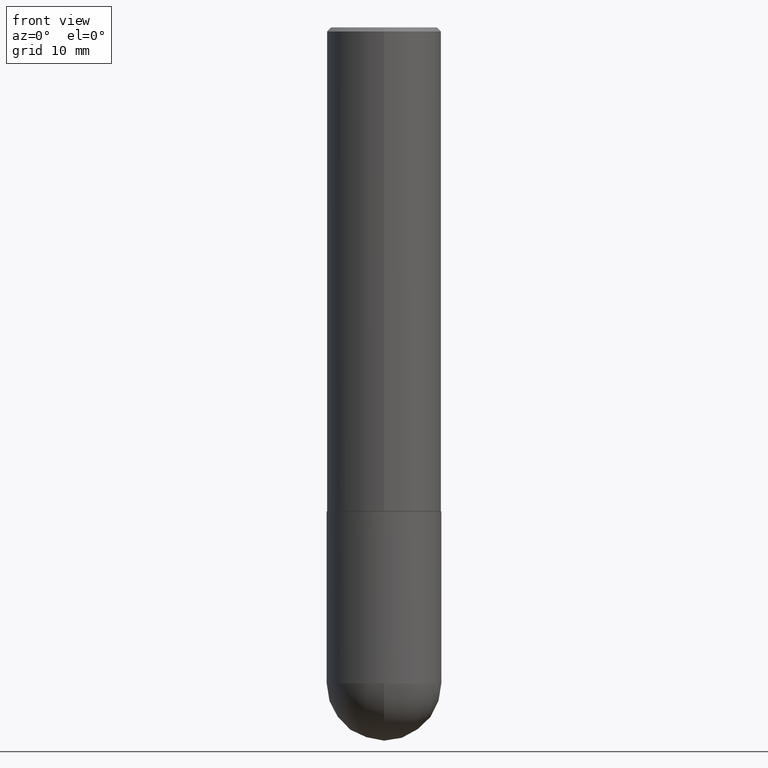
[diagram: clean part render]
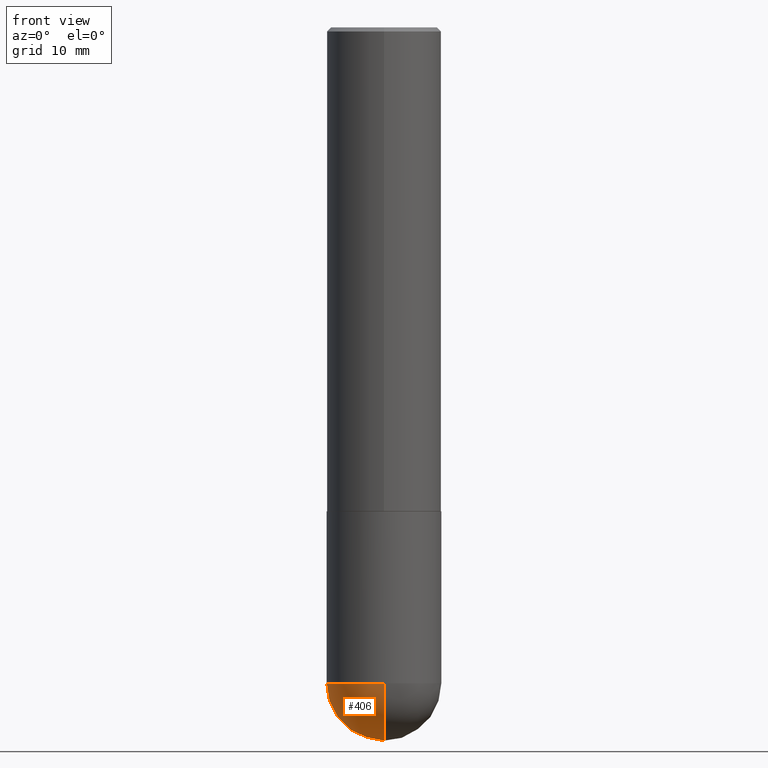
[diagram: same view with one face highlighted and labeled with its STEP entity id]
A machine part, front view. The second image highlights one B-rep face of the part: STEP entity #406.
In plain terms, the highlighted spherical surface has radius 7.1438 mm.
Its self-contained STEP definition (entity closure, byte-faithful):
#26 = CIRCLE ( 'NONE', #281, 0.2812500000000003331 ) ;
#45 = ORIENTED_EDGE ( 'NONE', *, *, #260, .T. ) ;
#53 = DIRECTION ( 'NONE',  ( 6.982962677686265133E-15, 1.000000000000000000, 0.000000000000000000 ) ) ;
#75 = ORIENTED_EDGE ( 'NONE', *, *, #159, .F. ) ;
#85 = CIRCLE ( 'NONE', #150, 0.2812500000000003331 ) ;
#89 = CARTESIAN_POINT ( 'NONE',  ( 7.540232941994521053E-29, -1.171238792754142562E-14, -3.218749999999999556 ) ) ;
#98 = CARTESIAN_POINT ( 'NONE',  ( 7.871352719908407300E-29, -1.123820555940137375E-14, -3.218749999999999556 ) ) ;
#101 = EDGE_CURVE ( 'NONE', #291, #226, #185, .T. ) ;
#118 = DIRECTION ( 'NONE',  ( 1.000000000000000000, -6.982962677686268288E-15, 0.000000000000000000 ) ) ;
#123 = DIRECTION ( 'NONE',  ( -2.445468806185136597E-29, 3.491481338843145583E-15, 1.000000000000000000 ) ) ;
#134 = CIRCLE ( 'NONE', #277, 0.2812500000000000555 ) ;
#140 = EDGE_LOOP ( 'NONE', ( #160, #45, #259, #75 ) ) ;
#146 = DIRECTION ( 'NONE',  ( -2.445468806185136597E-29, 3.491481338843145583E-15, 1.000000000000000000 ) ) ;
#150 = AXIS2_PLACEMENT_3D ( 'NONE', #229, #270, #168 ) ;
#154 = CARTESIAN_POINT ( 'NONE',  ( -0.2812500000000000555, -7.766835425251640949E-15, -3.218749999999999556 ) ) ;
#159 = EDGE_CURVE ( 'NONE', #165, #291, #134, .T. ) ;
#160 = ORIENTED_EDGE ( 'NONE', *, *, #187, .F. ) ;
#162 = CARTESIAN_POINT ( 'NONE',  ( 8.240046819675677659E-29, -1.267714545847805119E-14, -3.500000000000000000 ) ) ;
#165 = VERTEX_POINT ( 'NONE', #372 ) ;
#168 = DIRECTION ( 'NONE',  ( -7.105427357601001859E-15, -1.000000000000000000, 0.000000000000000000 ) ) ;
#176 = DIRECTION ( 'NONE',  ( -1.000000000000000000, 6.982962677686265922E-15, -4.883557194083112901E-29 ) ) ;
#177 = FACE_OUTER_BOUND ( 'NONE', #140, .T. ) ;
#179 = SPHERICAL_SURFACE ( 'NONE', #212, 0.2812500000000003331 ) ;
#185 = CIRCLE ( 'NONE', #352, 0.2812500000000000555 ) ;
#187 = EDGE_CURVE ( 'NONE', #391, #165, #26, .T. ) ;
#202 = CARTESIAN_POINT ( 'NONE',  ( 7.540232941994521053E-29, -1.171238792754142562E-14, -3.218749999999999556 ) ) ;
#212 = AXIS2_PLACEMENT_3D ( 'NONE', #89, #176, #314 ) ;
#226 = VERTEX_POINT ( 'NONE', #242 ) ;
#229 = CARTESIAN_POINT ( 'NONE',  ( 7.540232941994521053E-29, -1.171238792754142562E-14, -3.218749999999999556 ) ) ;
#242 = CARTESIAN_POINT ( 'NONE',  ( -1.998401444325206042E-15, -0.2812500000000116573, -3.218749999999998668 ) ) ;
#251 = DIRECTION ( 'NONE',  ( 1.000000000000000000, -6.982962677686268288E-15, 0.000000000000000000 ) ) ;
#259 = ORIENTED_EDGE ( 'NONE', *, *, #101, .F. ) ;
#260 = EDGE_CURVE ( 'NONE', #391, #226, #85, .T. ) ;
#270 = DIRECTION ( 'NONE',  ( -1.000000000000000000, 7.105427357601001070E-15, -4.926315508542082329E-29 ) ) ;
#277 = AXIS2_PLACEMENT_3D ( 'NONE', #98, #123, #251 ) ;
#281 = AXIS2_PLACEMENT_3D ( 'NONE', #202, #326, #53 ) ;
#291 = VERTEX_POINT ( 'NONE', #154 ) ;
#314 = DIRECTION ( 'NONE',  ( 6.982962677686265922E-15, 1.000000000000000000, -3.885294924322502955E-15 ) ) ;
#326 = DIRECTION ( 'NONE',  ( 1.000000000000000000, -6.982962677686265922E-15, 4.883557194083112340E-29 ) ) ;
#352 = AXIS2_PLACEMENT_3D ( 'NONE', #360, #146, #118 ) ;
#360 = CARTESIAN_POINT ( 'NONE',  ( 7.871352719908407300E-29, -1.123820555940137375E-14, -3.218749999999999556 ) ) ;
#372 = CARTESIAN_POINT ( 'NONE',  ( 1.963958253099340610E-15, 0.2812499999999886757, -3.218750000000000888 ) ) ;
#391 = VERTEX_POINT ( 'NONE', #162 ) ;
#406 = ADVANCED_FACE ( 'NONE', ( #177 ), #179, .T. ) ;